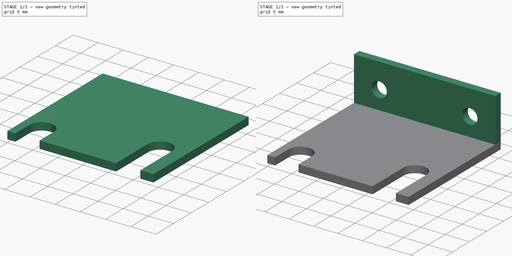
[diagram: build sequence overview — one tinted view per stage of 2, left to right]
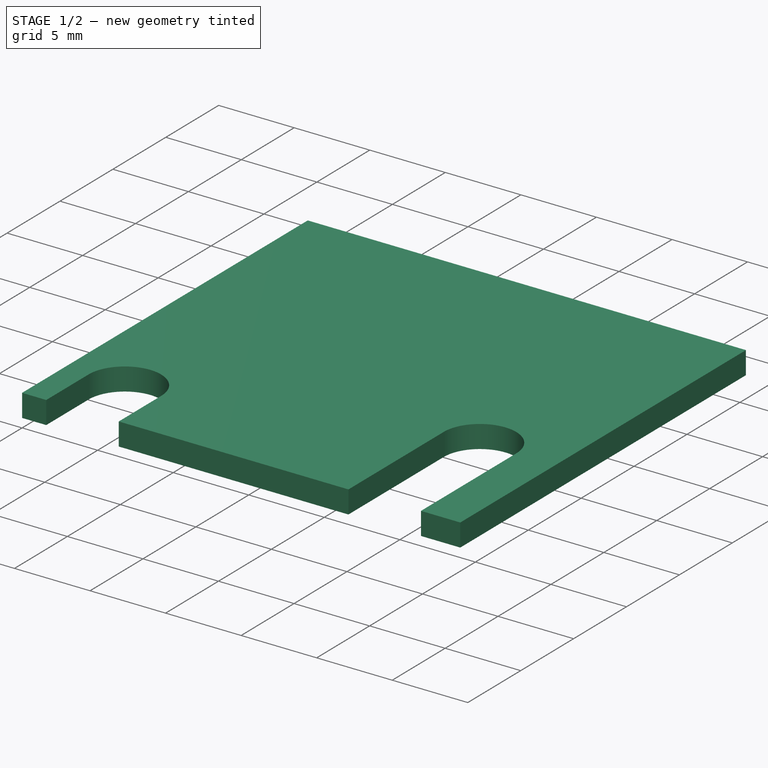
[diagram: stage 1 of 2 — iso view after this stage's code; geometry added in this stage tinted green]
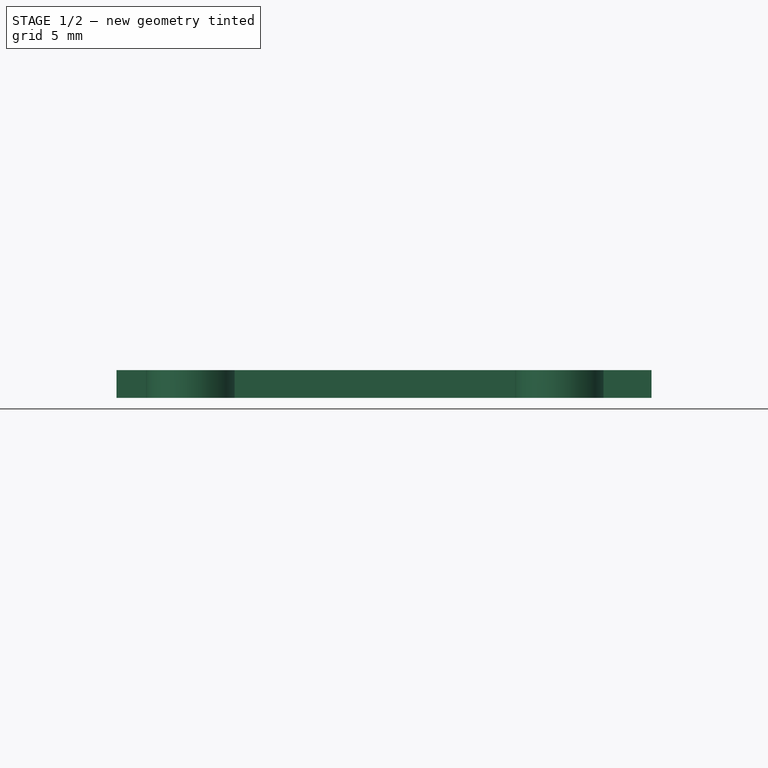
[diagram: stage 1 of 2 — front view after this stage's code; geometry added in this stage tinted green]
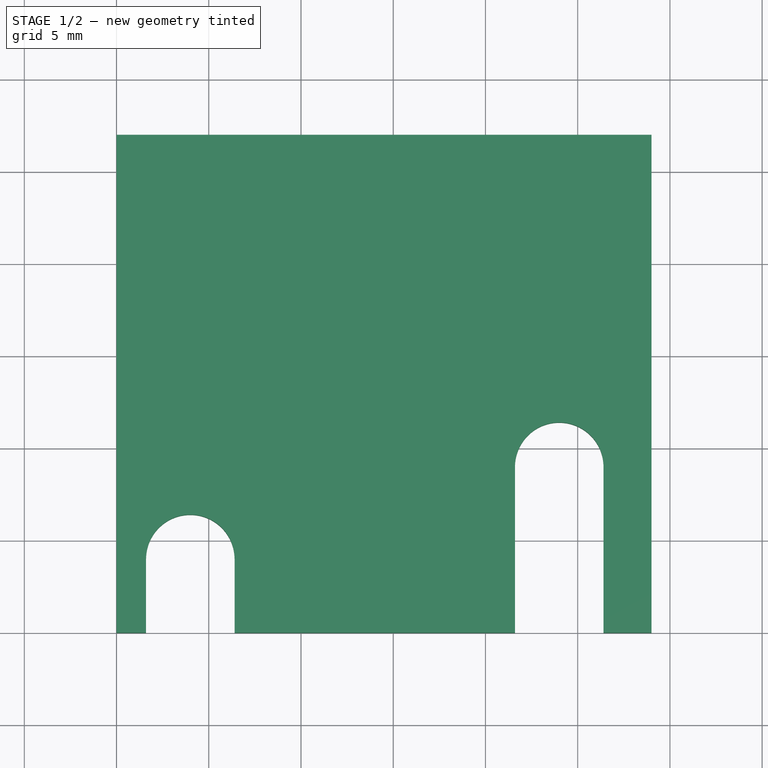
[diagram: stage 1 of 2 — top view after this stage's code; geometry added in this stage tinted green]
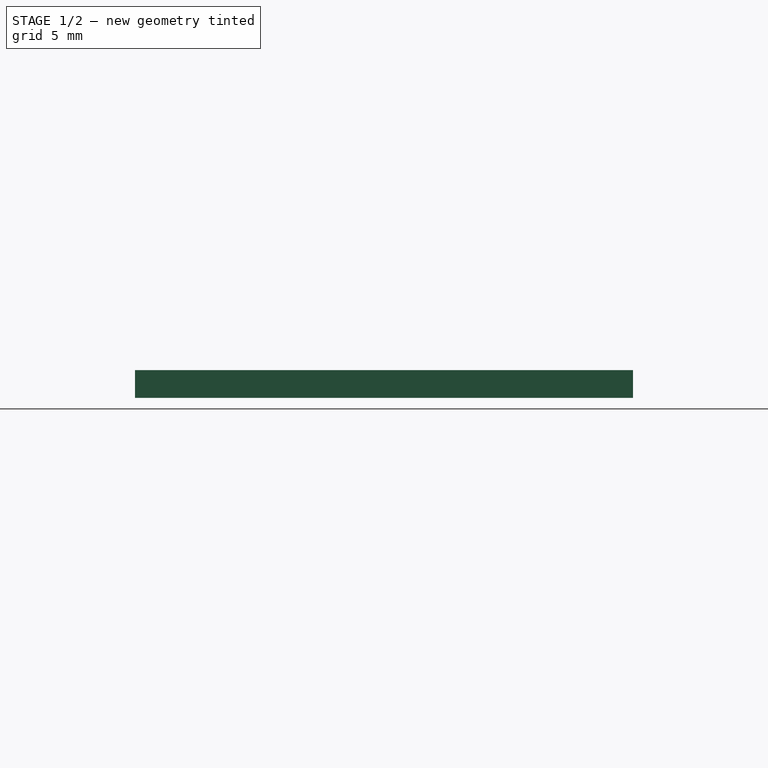
[diagram: stage 1 of 2 — right view after this stage's code; geometry added in this stage tinted green]
FCSTD DOCUMENT  (FreeCAD 0.15R4671 (Git))
Label: end-stop-support-y
License: All rights reserved
LicenseURL: http://es.wikipedia.org/wiki/Todos_los_derechos_reservados
objects: Sketcher::SketchObject×3, PartDesign::Pocket×2, Part::Box×1, PartDesign::Pad×1
note: 10 computed .brp shape members not serialized (recipe doc carries the construction recipe); baked Part::Feature solids carry a one-line shape summary decoded from their .brp

FEATURE [Part::Box] Box  label="Cubo"
  Height = 1.5
  Length = 29
  Width = 27
FEATURE [Sketcher::SketchObject] Sketch
  ExternalGeometry = -> [Box]
  Placement = pos=(0,0,1.5) rot=(0,0,1;0rad)
  Support = -> Box [Face6]
  sketch-geometry (10):
    g0: ArcOfCircle CenterX=4 CenterY=4 CenterZ=0 NormalX=0 NormalY=0 NormalZ=1 Radius=2.4 StartAngle=0.00565268 EndAngle=3.13594
    g1: LineSegment [constr] StartX=4 StartY=4 StartZ=0 EndX=4 EndY=9 EndZ=0
    g2: LineSegment StartX=1.60004 StartY=4.01357 StartZ=0 EndX=1.60004 EndY=0 EndZ=0
    g3: LineSegment StartX=6.39996 StartY=4.01357 StartZ=0 EndX=6.39996 EndY=0 EndZ=0
    g4: LineSegment StartX=21.6 StartY=8.99995 StartZ=0 EndX=21.6 EndY=0 EndZ=0
    g5: LineSegment StartX=26.4 StartY=8.99995 StartZ=0 EndX=26.4 EndY=0 EndZ=0
    g6: ArcOfCircle CenterX=24 CenterY=9 CenterZ=0 NormalX=0 NormalY=0 NormalZ=1 Radius=2.4 StartAngle=6.28317 EndAngle=9.4248
    g7: LineSegment StartX=1.60004 StartY=0 StartZ=0 EndX=6.39996 EndY=0 EndZ=0
    g8: LineSegment StartX=21.6 StartY=0 StartZ=0 EndX=26.4 EndY=0 EndZ=0
    g9: LineSegment [constr] StartX=4 StartY=9 StartZ=0 EndX=24 EndY=9 EndZ=0
  constraints (29):
    c: Radius(g0) = 2.4
    c: Distance(g0,g-3) = 23
    c: Coincident(g1,g0)
    c: Vertical(g1)
    c: DistanceX(g-2,g0) = 4
    c: PointOnObject(g2,g-1)
    c: Vertical(g2)
    c: PointOnObject(g3,g-1)
    c: Vertical(g3)
    c: Coincident(g0,g3)
    c: Coincident(g0,g2)
    c: PointOnObject(g4,g-1)
    c: Vertical(g4)
    c: PointOnObject(g5,g-1)
    c: Vertical(g5)
    c: Coincident(g6,g4)
    c: Coincident(g6,g5)
    c: Distance(g6,g-3) = 18
    c: Coincident(g7,g2)
    c: Coincident(g7,g3)
    c: Coincident(g8,g4)
    c: Coincident(g8,g5)
    c: Coincident(g9,g1)
    c: Coincident(g9,g6)
    c: Horizontal(g9)
    c: DistanceX(g9) = 20
    c: Equal(g6,g0)
    c: Equal(g2,g3)
    c: Equal(g4,g5)
FEATURE [PartDesign::Pocket] Pocket
  Length = 5
  Sketch = -> Sketch
  Type = 1
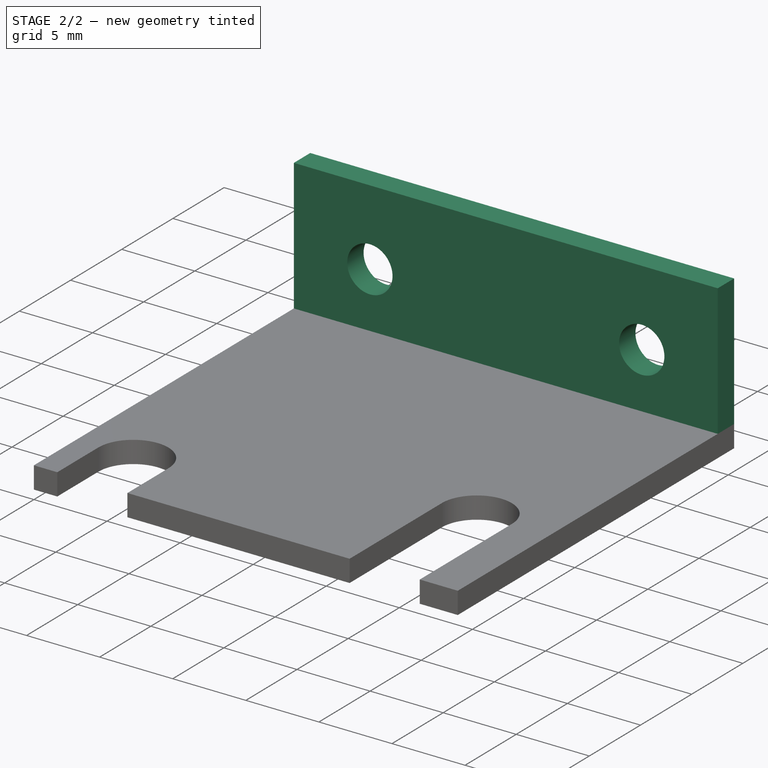
[diagram: stage 2 of 2 — iso view after this stage's code; geometry added in this stage tinted green]
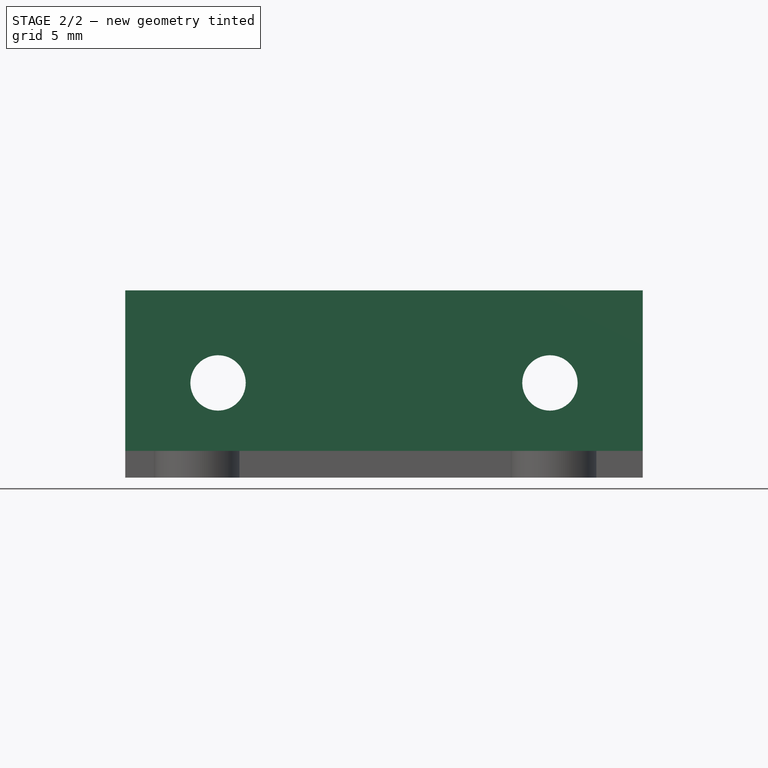
[diagram: stage 2 of 2 — front view after this stage's code; geometry added in this stage tinted green]
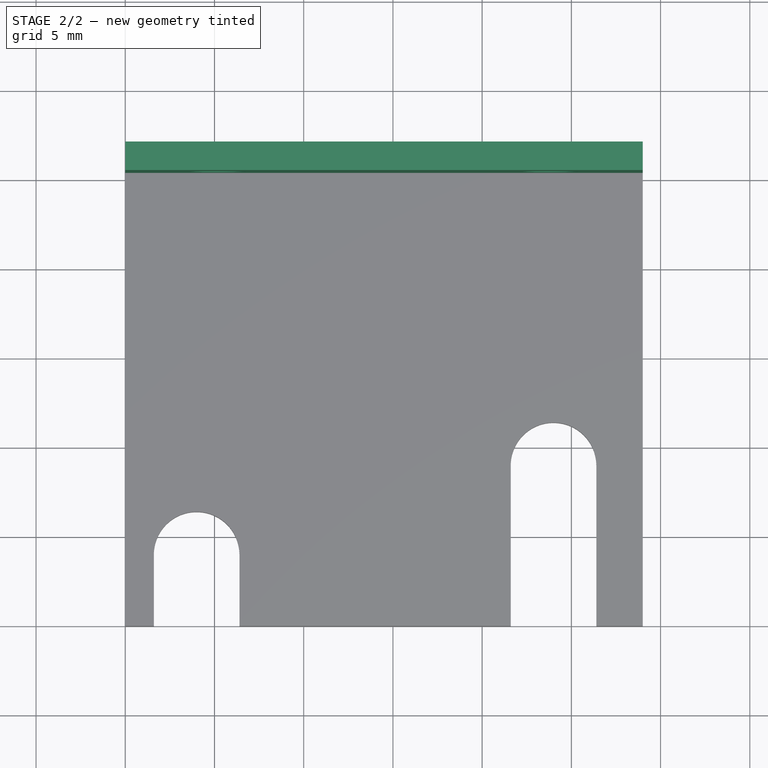
[diagram: stage 2 of 2 — top view after this stage's code; geometry added in this stage tinted green]
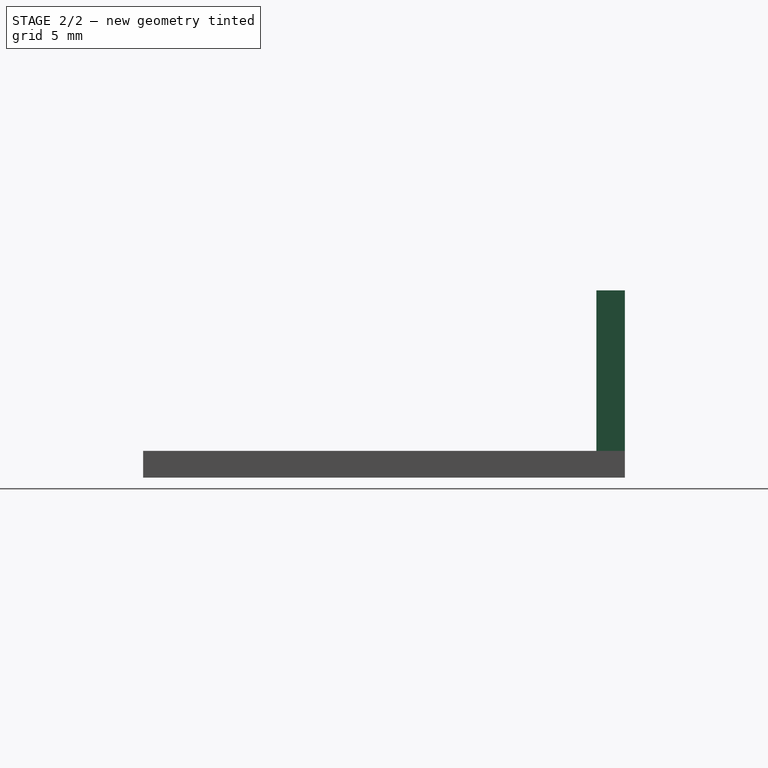
[diagram: stage 2 of 2 — right view after this stage's code; geometry added in this stage tinted green]
FEATURE [Sketcher::SketchObject] Sketch001
  ExternalGeometry = -> [Pocket]
  Placement = pos=(0,0,1.5) rot=(0,0,1;0rad)
  Support = -> Pocket [Face3]
  sketch-geometry (4):
    g0: LineSegment StartX=0 StartY=27 StartZ=0 EndX=29 EndY=27 EndZ=0
    g1: LineSegment StartX=29 StartY=27 StartZ=0 EndX=29 EndY=25.4 EndZ=0
    g2: LineSegment StartX=29 StartY=25.4 StartZ=0 EndX=0 EndY=25.4 EndZ=0
    g3: LineSegment StartX=0 StartY=25.4 StartZ=0 EndX=0 EndY=27 EndZ=0
  constraints (11):
    c: Coincident(g0,g1)
    c: Coincident(g1,g2)
    c: Coincident(g2,g3)
    c: Coincident(g3,g0)
    c: Horizontal(g0)
    c: Horizontal(g2)
    c: Vertical(g1)
    c: Vertical(g3)
    c: Coincident(g0,g-3)
    c: Coincident(g0,g-3)
    c: DistanceY(g1) = -1.6
FEATURE [PartDesign::Pad] Pad
  Length = 9
  Length2 = 100
  Sketch = -> Sketch001
  Type = 0
FEATURE [Sketcher::SketchObject] Sketch002
  ExternalGeometry = -> [Pad]
  Placement = pos=(0,27,0) rot=(0,0.707107,0.707107;3.14159rad)
  Support = -> Pad [Face17]
  sketch-geometry (4):
    g0: Circle CenterX=-23.8 CenterY=5.31 CenterZ=0 NormalX=0 NormalY=0 NormalZ=1 Radius=1.55
    g1: Circle CenterX=-5.2 CenterY=5.31 CenterZ=0 NormalX=0 NormalY=0 NormalZ=1 Radius=1.55
    g2: LineSegment [constr] StartX=0 StartY=0 StartZ=0 EndX=-14.5 EndY=0 EndZ=0
    g3: LineSegment [constr] StartX=-14.5 StartY=0 StartZ=0 EndX=-14.5 EndY=13.3672 EndZ=0
  constraints (10):
    c: Equal(g0,g1)
    c: Radius(g0) = 1.55
    c: Coincident(g-1,g2)
    c: PointOnObject(g2,g-1)
    c: Coincident(g2,g3)
    c: Vertical(g3)
    c: DistanceX(g2) = -14.5
    c: Symmetric(g0,g1,g3)
    c: Distance(g1,g3) = 9.3
    c: Distance(g1,g-3) = 5.19
FEATURE [PartDesign::Pocket] Pocket001  label="end-stop-support-y-final"
  Length = 5
  Sketch = -> Sketch002
  Type = 1
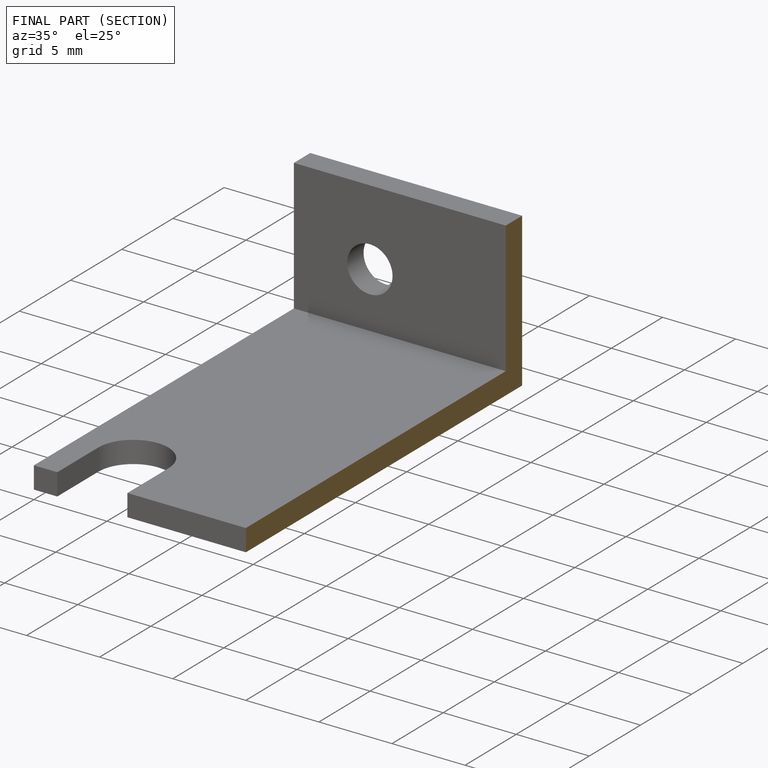
[diagram: finished part — half-section view (interior)]
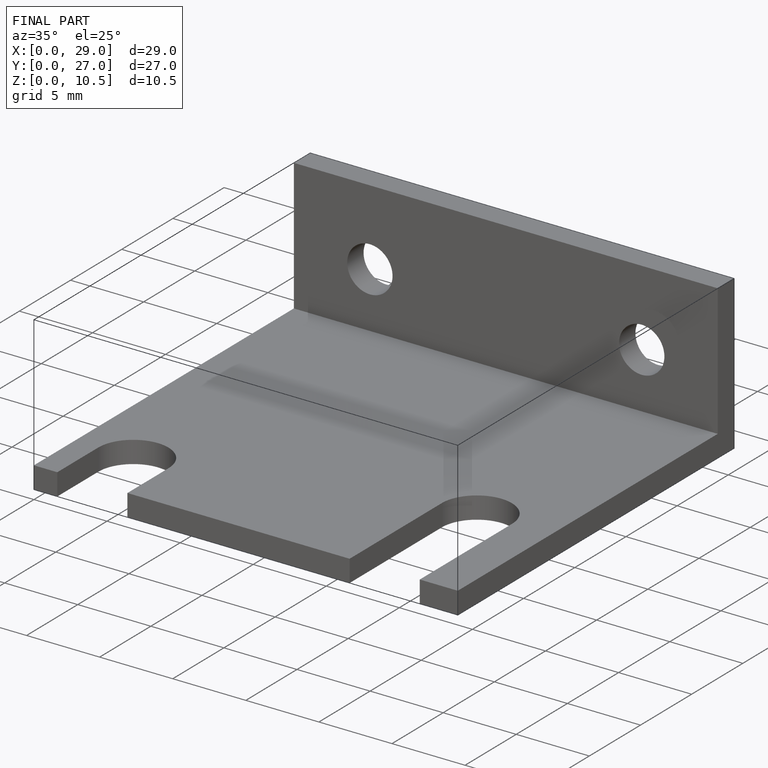
[diagram: finished part — iso view with bounding-box wireframe]
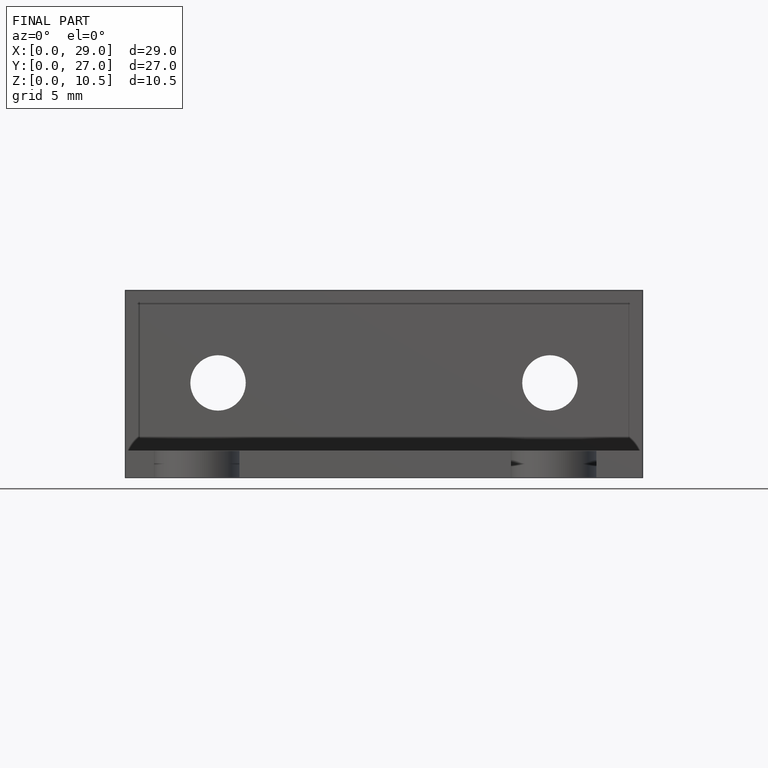
[diagram: finished part — front view with bounding-box wireframe]
